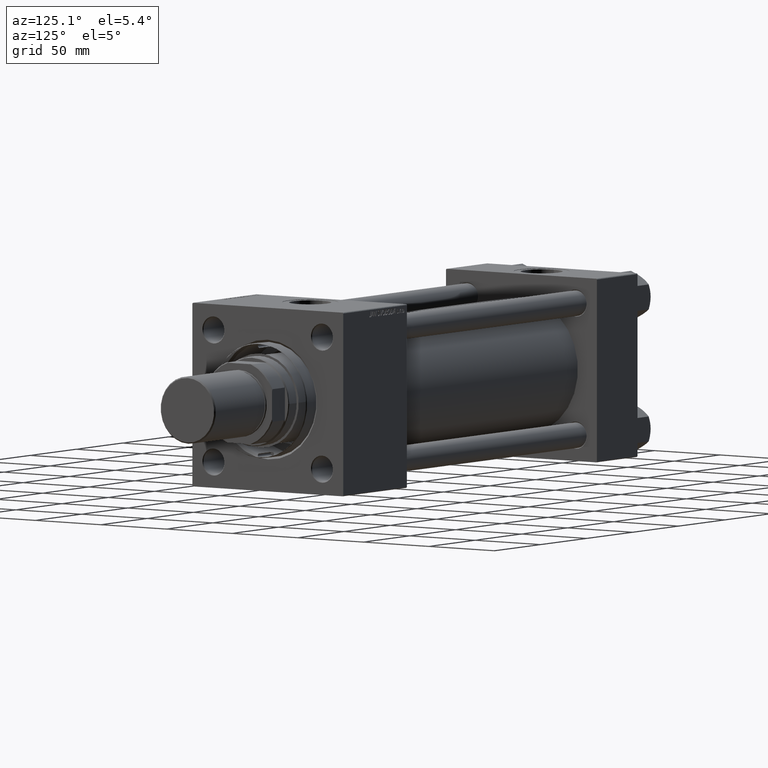
[diagram: clean part render]
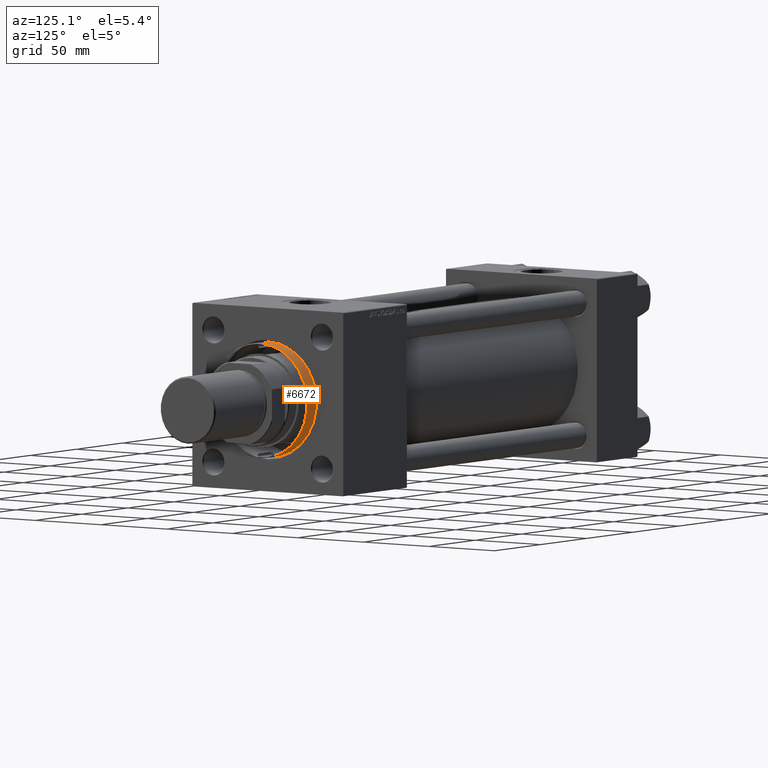
[diagram: same view with one face highlighted and labeled with its STEP entity id]
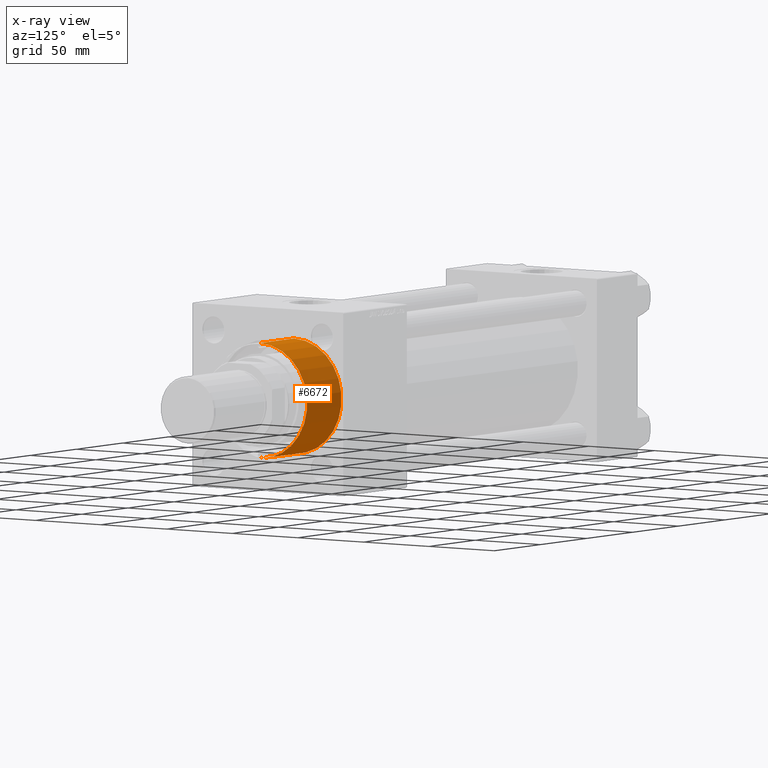
[diagram: x-ray of the same camera — body ghosted, the highlighted face saturated]
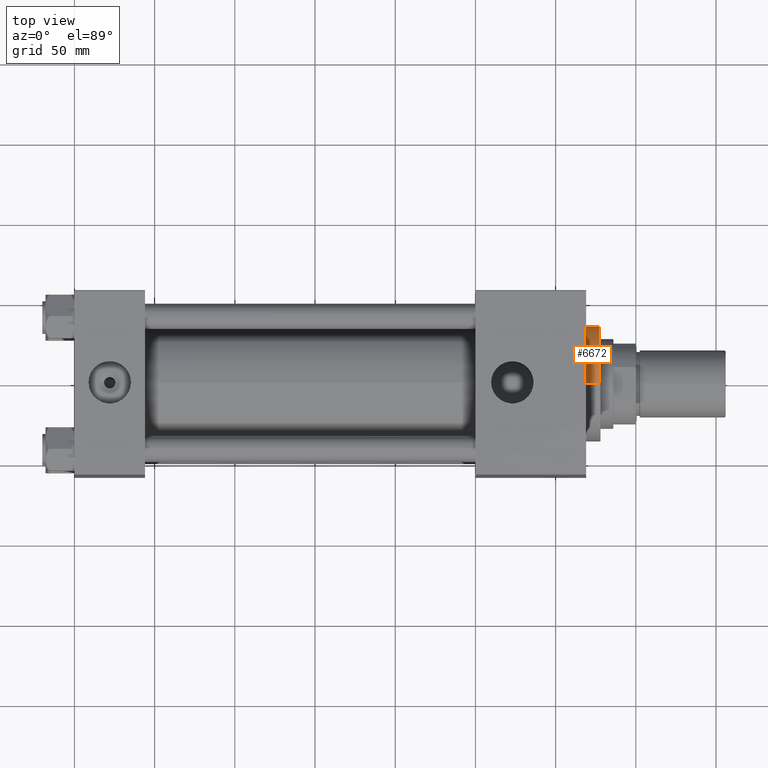
[diagram: same view with one face highlighted and labeled with its STEP entity id]
A machine part, auxiliary view. The second image highlights one B-rep face of the part: STEP entity #6672.
The next image is the same camera in x-ray: the body ghosted, the highlighted face saturated — about 0% of this face is hidden behind the body in this view.
A second angle (top view) of the same face is appended — the face is thin or edge-on in the first view.
In plain terms, the highlighted cylindrical surface (partial cylindrical patch) has radius 36 mm, axis along (-1, -0, -0).
Its self-contained STEP definition (entity closure, byte-faithful):
#477 = VERTEX_POINT ( 'NONE', #12958 ) ;
#1019 = DIRECTION ( 'NONE',  ( -0.000000000000000000, -0.000000000000000000, -1.000000000000000000 ) ) ;
#3489 = LINE ( 'NONE', #50682, #34436 ) ;
#4082 = DIRECTION ( 'NONE',  ( 1.000000000000000000, 0.000000000000000000, 0.000000000000000000 ) ) ;
#4378 = CYLINDRICAL_SURFACE ( 'NONE', #17084, 36.00000000000000000 ) ;
#5883 = CARTESIAN_POINT ( 'NONE',  ( 36.00000000000000000, 4.408728476930470856E-15, 37.20000000000000284 ) ) ;
#6367 = CARTESIAN_POINT ( 'NONE',  ( -36.00000000000000000, 0.000000000000000000, 0.000000000000000000 ) ) ;
#6672 = ADVANCED_FACE ( 'NONE', ( #37503 ), #4378, .T. ) ;
#8619 = ORIENTED_EDGE ( 'NONE', *, *, #8876, .T. ) ;
#8876 = EDGE_CURVE ( 'NONE', #19789, #42768, #13012, .T. ) ;
#11945 = ORIENTED_EDGE ( 'NONE', *, *, #41611, .F. ) ;
#12428 = EDGE_CURVE ( 'NONE', #477, #20155, #35482, .T. ) ;
#12958 = CARTESIAN_POINT ( 'NONE',  ( 36.00000000000000000, 4.408728476930470856E-15, 0.000000000000000000 ) ) ;
#13012 = CIRCLE ( 'NONE', #47767, 36.00000000000000000 ) ;
#13566 = EDGE_LOOP ( 'NONE', ( #8619, #16825, #22730, #11945 ) ) ;
#16825 = ORIENTED_EDGE ( 'NONE', *, *, #47372, .T. ) ;
#17084 = AXIS2_PLACEMENT_3D ( 'NONE', #47930, #1019, #49410 ) ;
#19789 = VERTEX_POINT ( 'NONE', #31897 ) ;
#20097 = DIRECTION ( 'NONE',  ( 1.000000000000000000, 0.000000000000000000, 0.000000000000000000 ) ) ;
#20155 = VERTEX_POINT ( 'NONE', #6367 ) ;
#22730 = ORIENTED_EDGE ( 'NONE', *, *, #12428, .T. ) ;
#23809 = CARTESIAN_POINT ( 'NONE',  ( 0.000000000000000000, 0.000000000000000000, 37.20000000000000284 ) ) ;
#27636 = VECTOR ( 'NONE', #39094, 1000.000000000000000 ) ;
#28672 = CARTESIAN_POINT ( 'NONE',  ( 0.000000000000000000, 0.000000000000000000, 0.000000000000000000 ) ) ;
#29185 = DIRECTION ( 'NONE',  ( 0.000000000000000000, 0.000000000000000000, 1.000000000000000000 ) ) ;
#31897 = CARTESIAN_POINT ( 'NONE',  ( -36.00000000000000000, 0.000000000000000000, 37.20000000000000284 ) ) ;
#33855 = AXIS2_PLACEMENT_3D ( 'NONE', #28672, #29185, #20097 ) ;
#34436 = VECTOR ( 'NONE', #39030, 1000.000000000000000 ) ;
#35482 = CIRCLE ( 'NONE', #33855, 36.00000000000000000 ) ;
#36918 = LINE ( 'NONE', #46858, #27636 ) ;
#37503 = FACE_OUTER_BOUND ( 'NONE', #13566, .T. ) ;
#39030 = DIRECTION ( 'NONE',  ( -0.000000000000000000, -0.000000000000000000, -1.000000000000000000 ) ) ;
#39094 = DIRECTION ( 'NONE',  ( -0.000000000000000000, -0.000000000000000000, -1.000000000000000000 ) ) ;
#39625 = DIRECTION ( 'NONE',  ( 0.000000000000000000, 0.000000000000000000, -1.000000000000000000 ) ) ;
#41611 = EDGE_CURVE ( 'NONE', #19789, #20155, #36918, .T. ) ;
#42768 = VERTEX_POINT ( 'NONE', #5883 ) ;
#46858 = CARTESIAN_POINT ( 'NONE',  ( -36.00000000000000000, 0.000000000000000000, 28.69999999999999929 ) ) ;
#47372 = EDGE_CURVE ( 'NONE', #42768, #477, #3489, .T. ) ;
#47767 = AXIS2_PLACEMENT_3D ( 'NONE', #23809, #39625, #4082 ) ;
#47930 = CARTESIAN_POINT ( 'NONE',  ( 0.000000000000000000, 0.000000000000000000, 28.69999999999999929 ) ) ;
#49410 = DIRECTION ( 'NONE',  ( -1.000000000000000000, 0.000000000000000000, 0.000000000000000000 ) ) ;
#50682 = CARTESIAN_POINT ( 'NONE',  ( 36.00000000000000000, 4.408728476930470856E-15, 28.69999999999999929 ) ) ;